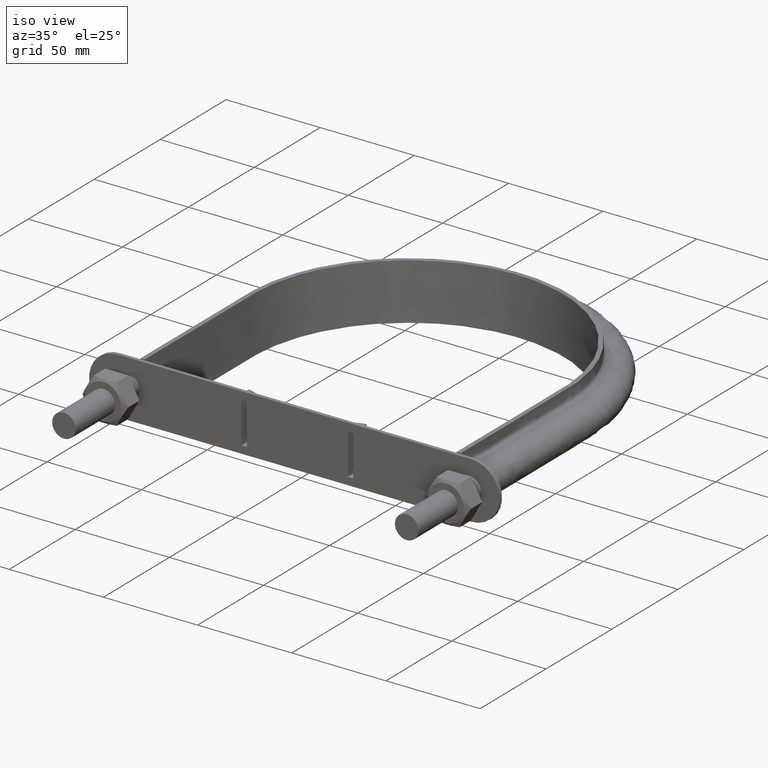
[diagram: clean part render]
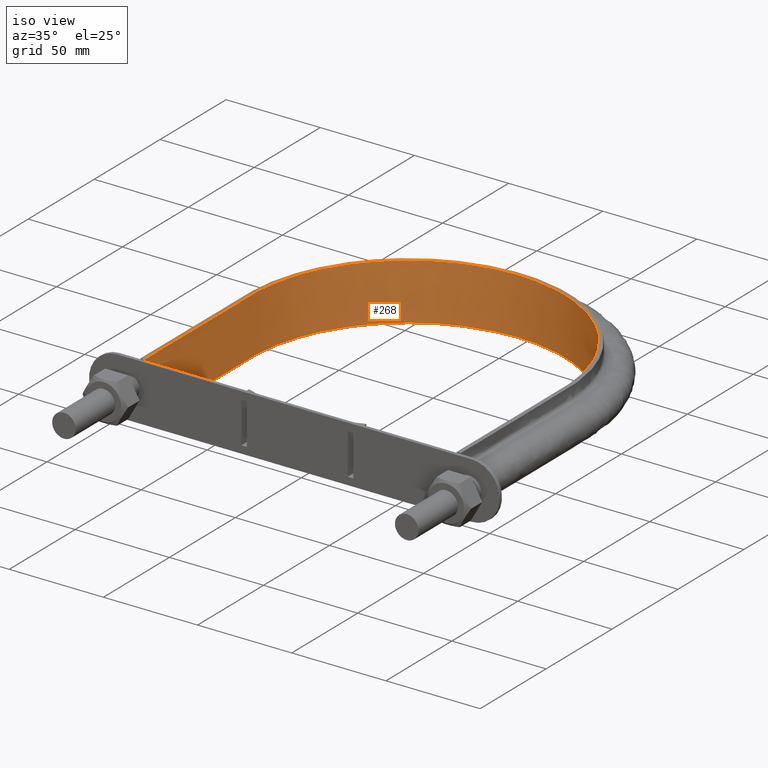
[diagram: same view with one face highlighted and labeled with its STEP entity id]
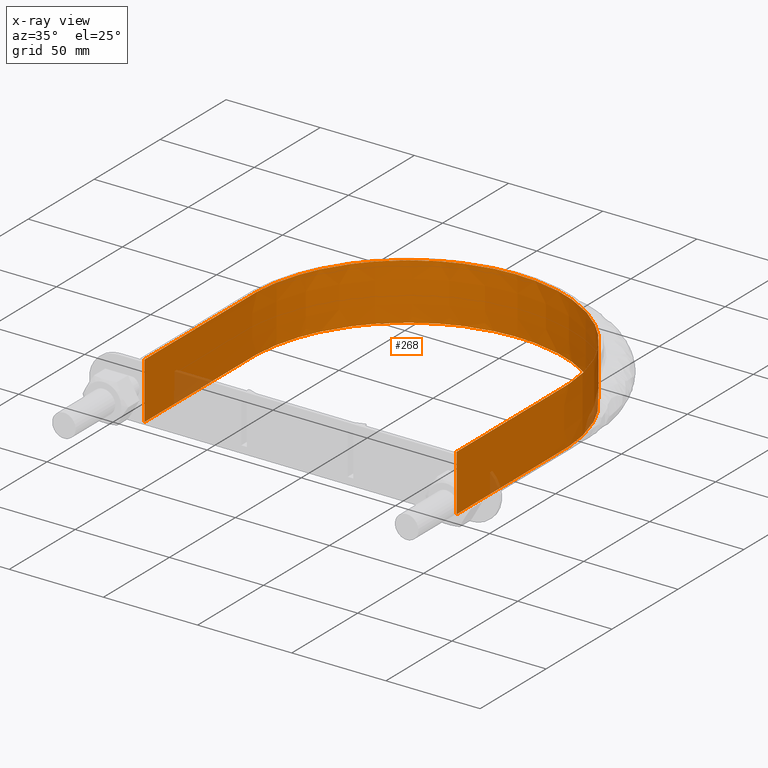
[diagram: x-ray of the same camera — body ghosted, the highlighted face saturated]
A machine part, iso view. The second image highlights one B-rep face of the part: STEP entity #268.
The next image is the same camera in x-ray: the body ghosted, the highlighted face saturated — about 3% of this face is hidden behind the body in this view.
In plain terms, the highlighted face is a SurfaceOfExtrusion surface.
Its self-contained STEP definition (entity closure, byte-faithful):
#268 = ADVANCED_FACE( '', ( #346 ), #347, .T. );
#346 = FACE_OUTER_BOUND( '', #529, .T. );
#347 = SURFACE_OF_LINEAR_EXTRUSION( '', #530, #531 );
#529 = EDGE_LOOP( '', ( #1616, #1617, #1618, #1619 ) );
#530 = B_SPLINE_CURVE_WITH_KNOTS( '', 3, ( #1620, #1621, #1622, #1623, #1624, #1625, #1626, #1627, #1628, #1629, #1630, #1631, #1632, #1633, #1634, #1635, #1636 ), .UNSPECIFIED., .F., .F., ( 4, 3, 1, 1, 1, 1, 1, 1, 1, 3, 4 ), ( -10.0000000000000, -9.00000000000000, -8.00000000000000, -7.00000000000000, -6.00000000000000, -5.00000000000000, -4.00000000000000, -3.00000000000000, -2.00000000000000, -1.00000000000000, 0.000000000000000 ), .UNSPECIFIED. );
#531 = VECTOR( '', #1637, 1000.00000000000 );
#1616 = ORIENTED_EDGE( '', *, *, #2172, .F. );
#1617 = ORIENTED_EDGE( '', *, *, #2167, .F. );
#1618 = ORIENTED_EDGE( '', *, *, #2173, .T. );
#1619 = ORIENTED_EDGE( '', *, *, #2174, .T. );
#1620 = CARTESIAN_POINT( '', ( -82.8500000000000, 49.5000000000001, -278.469308654335 ) );
#1621 = CARTESIAN_POINT( '', ( -82.8500000000000, 76.7166666666667, -278.469308654335 ) );
#1622 = CARTESIAN_POINT( '', ( -82.8500000000000, 103.933333333333, -278.469308654335 ) );
#1623 = CARTESIAN_POINT( '', ( -82.8500000000000, 131.150000000000, -278.469308654335 ) );
#1624 = CARTESIAN_POINT( '', ( -82.8500000000000, 141.979512005492, -278.469308654335 ) );
#1625 = CARTESIAN_POINT( '', ( -78.5361555605724, 163.687272457852, -278.469308654335 ) );
#1626 = CARTESIAN_POINT( '', ( -60.1089711493570, 191.257212617967, -278.469308654335 ) );
#1627 = CARTESIAN_POINT( '', ( -32.5307407698323, 209.686657998112, -278.469308654335 ) );
#1628 = CARTESIAN_POINT( '', ( 5.42262588885138E-014, 216.156671000944, -278.469308654335 ) );
#1629 = CARTESIAN_POINT( '', ( 32.5307407698323, 209.686657998112, -278.469308654335 ) );
#1630 = CARTESIAN_POINT( '', ( 60.1089711493571, 191.257212617967, -278.469308654335 ) );
#1631 = CARTESIAN_POINT( '', ( 78.5361555605725, 163.687272457852, -278.469308654335 ) );
#1632 = CARTESIAN_POINT( '', ( 82.8500000000000, 141.979512005492, -278.469308654335 ) );
#1633 = CARTESIAN_POINT( '', ( 82.8500000000000, 131.150000000000, -278.469308654335 ) );
#1634 = CARTESIAN_POINT( '', ( 82.8500000000000, 103.933333333333, -278.469308654335 ) );
#1635 = CARTESIAN_POINT( '', ( 82.8500000000000, 76.7166666666667, -278.469308654335 ) );
#1636 = CARTESIAN_POINT( '', ( 82.8500000000000, 49.5000000000000, -278.469308654335 ) );
#1637 = DIRECTION( '', ( 0.000000000000000, 0.000000000000000, 1.00000000000000 ) );
#2167 = EDGE_CURVE( '', #2331, #2332, #2333, .T. );
#2172 = EDGE_CURVE( '', #2332, #2341, #2342, .T. );
#2173 = EDGE_CURVE( '', #2331, #2343, #2344, .T. );
#2174 = EDGE_CURVE( '', #2343, #2341, #2345, .T. );
#2331 = VERTEX_POINT( '', #2617 );
#2332 = VERTEX_POINT( '', #2618 );
#2333 = LINE( '', #2619, #2620 );
#2341 = VERTEX_POINT( '', #2670 );
#2342 = B_SPLINE_CURVE_WITH_KNOTS( '', 3, ( #2671, #2672, #2673, #2674, #2675, #2676, #2677, #2678, #2679, #2680, #2681, #2682, #2683, #2684, #2685, #2686, #2687 ), .UNSPECIFIED., .F., .F., ( 4, 3, 1, 1, 1, 1, 1, 1, 1, 3, 4 ), ( -10.0000000000000, -9.00000000000000, -8.00000000000000, -7.00000000000000, -6.00000000000000, -5.00000000000000, -4.00000000000000, -3.00000000000000, -2.00000000000000, -1.00000000000000, 0.000000000000000 ), .UNSPECIFIED. );
#2343 = VERTEX_POINT( '', #2688 );
#2344 = B_SPLINE_CURVE_WITH_KNOTS( '', 3, ( #2689, #2690, #2691, #2692, #2693, #2694, #2695, #2696, #2697, #2698, #2699, #2700, #2701, #2702, #2703, #2704, #2705 ), .UNSPECIFIED., .F., .F., ( 4, 3, 1, 1, 1, 1, 1, 1, 1, 3, 4 ), ( -10.0000000000000, -9.00000000000000, -8.00000000000000, -7.00000000000000, -6.00000000000000, -5.00000000000000, -4.00000000000000, -3.00000000000000, -2.00000000000000, -1.00000000000000, 0.000000000000000 ), .UNSPECIFIED. );
#2345 = LINE( '', #2706, #2707 );
#2617 = CARTESIAN_POINT( '', ( -82.8499999999999, 49.5000000000003, -15.0000000000000 ) );
#2618 = CARTESIAN_POINT( '', ( -82.8499999999999, 49.5000000000003, 15.0000000000000 ) );
#2619 = CARTESIAN_POINT( '', ( -82.8500000000000, 49.5000000000001, -278.469308654335 ) );
#2620 = VECTOR( '', #3327, 1000.00000000000 );
#2670 = CARTESIAN_POINT( '', ( 82.8500000000002, 49.5000000000003, 15.0000000000000 ) );
#2671 = CARTESIAN_POINT( '', ( -82.8500000000000, 49.5000000000001, 15.0000000000000 ) );
#2672 = CARTESIAN_POINT( '', ( -82.8500000000000, 76.7166666666667, 15.0000000000000 ) );
#2673 = CARTESIAN_POINT( '', ( -82.8500000000000, 103.933333333333, 15.0000000000000 ) );
#2674 = CARTESIAN_POINT( '', ( -82.8500000000000, 131.150000000000, 15.0000000000000 ) );
#2675 = CARTESIAN_POINT( '', ( -82.8500000000000, 141.979512005492, 15.0000000000000 ) );
#2676 = CARTESIAN_POINT( '', ( -78.5361555605724, 163.687272457852, 15.0000000000000 ) );
#2677 = CARTESIAN_POINT( '', ( -60.1089711493570, 191.257212617967, 15.0000000000000 ) );
#2678 = CARTESIAN_POINT( '', ( -32.5307407698323, 209.686657998112, 15.0000000000000 ) );
#2679 = CARTESIAN_POINT( '', ( 5.42262588885138E-014, 216.156671000944, 15.0000000000000 ) );
#2680 = CARTESIAN_POINT( '', ( 32.5307407698323, 209.686657998112, 15.0000000000000 ) );
#2681 = CARTESIAN_POINT( '', ( 60.1089711493571, 191.257212617967, 15.0000000000000 ) );
#2682 = CARTESIAN_POINT( '', ( 78.5361555605725, 163.687272457852, 15.0000000000000 ) );
#2683 = CARTESIAN_POINT( '', ( 82.8500000000000, 141.979512005492, 15.0000000000000 ) );
#2684 = CARTESIAN_POINT( '', ( 82.8500000000000, 131.150000000000, 15.0000000000000 ) );
#2685 = CARTESIAN_POINT( '', ( 82.8500000000000, 103.933333333333, 15.0000000000000 ) );
#2686 = CARTESIAN_POINT( '', ( 82.8500000000000, 76.7166666666667, 15.0000000000000 ) );
#2687 = CARTESIAN_POINT( '', ( 82.8500000000000, 49.5000000000000, 15.0000000000000 ) );
#2688 = CARTESIAN_POINT( '', ( 82.8500000000000, 49.5000000000000, -15.0000000000000 ) );
#2689 = CARTESIAN_POINT( '', ( -82.8500000000000, 49.5000000000001, -15.0000000000000 ) );
#2690 = CARTESIAN_POINT( '', ( -82.8500000000000, 76.7166666666667, -15.0000000000000 ) );
#2691 = CARTESIAN_POINT( '', ( -82.8500000000000, 103.933333333333, -15.0000000000000 ) );
#2692 = CARTESIAN_POINT( '', ( -82.8500000000000, 131.150000000000, -15.0000000000000 ) );
#2693 = CARTESIAN_POINT( '', ( -82.8500000000000, 141.979512005492, -15.0000000000000 ) );
#2694 = CARTESIAN_POINT( '', ( -78.5361555605724, 163.687272457852, -15.0000000000000 ) );
#2695 = CARTESIAN_POINT( '', ( -60.1089711493570, 191.257212617967, -15.0000000000000 ) );
#2696 = CARTESIAN_POINT( '', ( -32.5307407698323, 209.686657998112, -15.0000000000000 ) );
#2697 = CARTESIAN_POINT( '', ( 5.42262588885138E-014, 216.156671000944, -15.0000000000000 ) );
#2698 = CARTESIAN_POINT( '', ( 32.5307407698323, 209.686657998112, -15.0000000000000 ) );
#2699 = CARTESIAN_POINT( '', ( 60.1089711493571, 191.257212617967, -15.0000000000000 ) );
#2700 = CARTESIAN_POINT( '', ( 78.5361555605725, 163.687272457852, -15.0000000000000 ) );
#2701 = CARTESIAN_POINT( '', ( 82.8500000000000, 141.979512005492, -15.0000000000000 ) );
#2702 = CARTESIAN_POINT( '', ( 82.8500000000000, 131.150000000000, -15.0000000000000 ) );
#2703 = CARTESIAN_POINT( '', ( 82.8500000000000, 103.933333333333, -15.0000000000000 ) );
#2704 = CARTESIAN_POINT( '', ( 82.8500000000000, 76.7166666666667, -15.0000000000000 ) );
#2705 = CARTESIAN_POINT( '', ( 82.8500000000000, 49.5000000000000, -15.0000000000000 ) );
#2706 = CARTESIAN_POINT( '', ( 82.8500000000000, 49.5000000000000, -278.469308654335 ) );
#2707 = VECTOR( '', #3330, 1000.00000000000 );
#3327 = DIRECTION( '', ( 0.000000000000000, 0.000000000000000, 1.00000000000000 ) );
#3330 = DIRECTION( '', ( 0.000000000000000, 0.000000000000000, 1.00000000000000 ) );